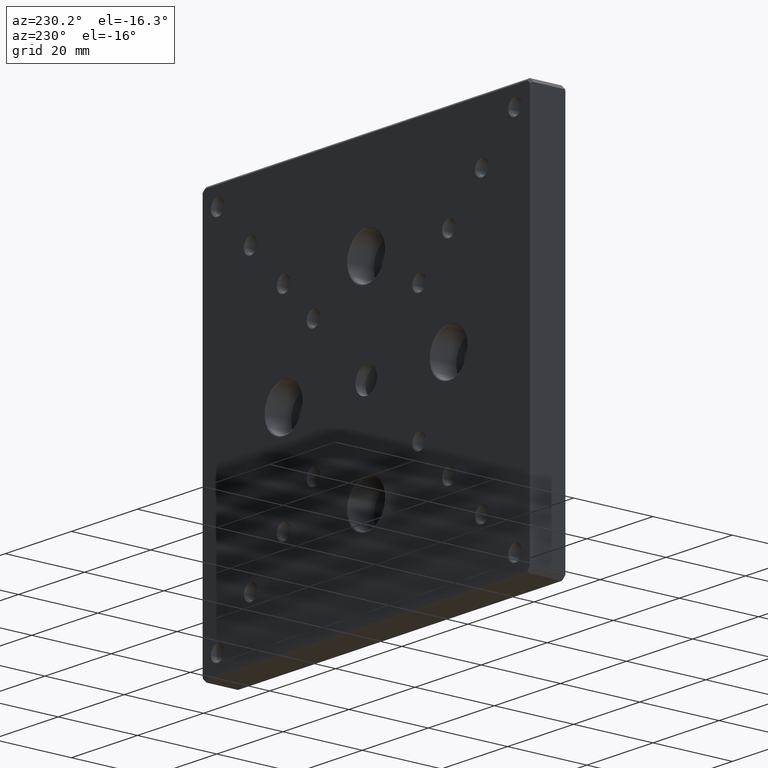
[diagram: clean part render]
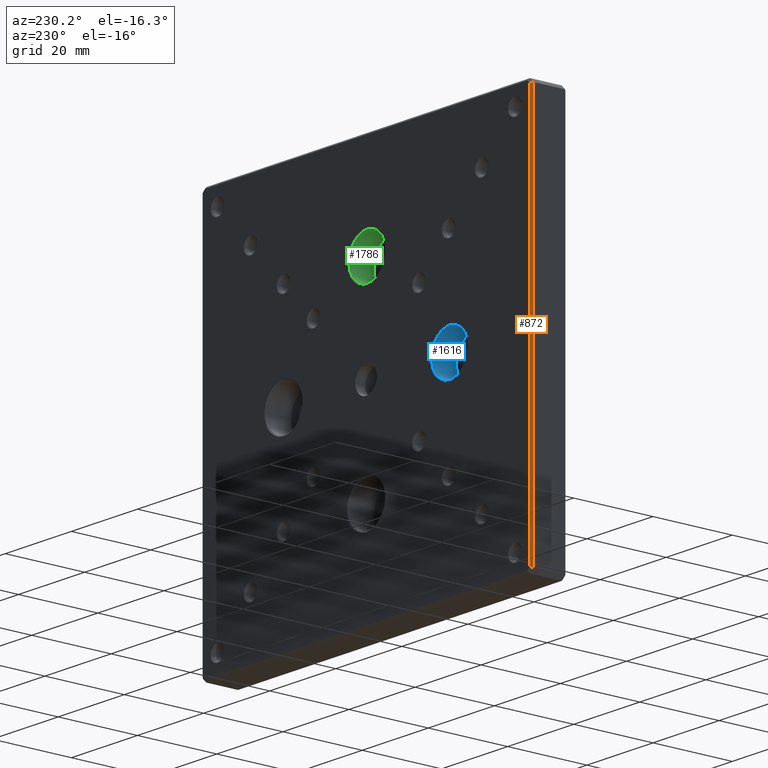
[diagram: same view with three faces highlighted in distinct colors, each labeled with its STEP entity id]
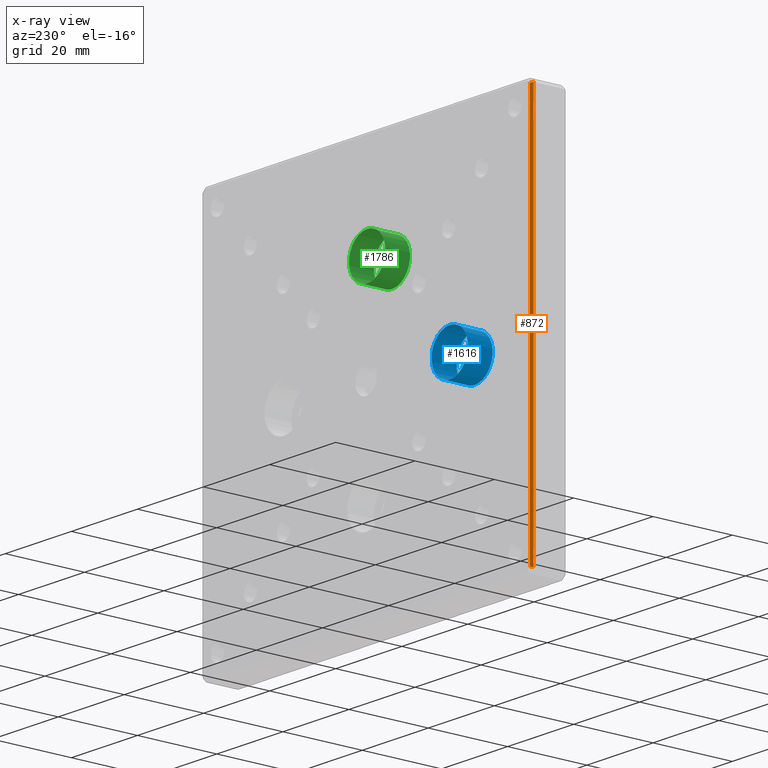
[diagram: x-ray of the same camera — body ghosted, the three highlighted faces saturated]
A machine part, auxiliary view with three faces highlighted in distinct colors.
The next image is the same camera in x-ray (body ghosted, the three faces saturated) — at least one of them is partly hidden behind the body in this view.
Their STEP definitions:

[orange] entity #872 — the highlighted planar face has unit normal (-0.7071, 0.7071, 0).
#84 = VERTEX_POINT ( 'NONE', #1437 ) ;
#117 = LINE ( 'NONE', #1403, #606 ) ;
#205 = ORIENTED_EDGE ( 'NONE', *, *, #1416, .F. ) ;
#228 = LINE ( 'NONE', #870, #927 ) ;
#308 = LINE ( 'NONE', #472, #571 ) ;
#375 = LINE ( 'NONE', #833, #1719 ) ;
#467 = AXIS2_PLACEMENT_3D ( 'NONE', #1141, #630, #638 ) ;
#472 = CARTESIAN_POINT ( 'NONE',  ( -50.00000000000000711, 8.499999999999998224, -49.00000000000002132 ) ) ;
#571 = VECTOR ( 'NONE', #622, 1000.000000000000000 ) ;
#606 = VECTOR ( 'NONE', #2049, 1000.000000000000114 ) ;
#622 = DIRECTION ( 'NONE',  ( -1.387778780781445676E-16, 0.000000000000000000, -1.000000000000000000 ) ) ;
#630 = DIRECTION ( 'NONE',  ( -0.7071067811865475727, 0.7071067811865475727, 9.813077866773594484E-17 ) ) ;
#638 = DIRECTION ( 'NONE',  ( -1.387778780781445676E-16, 0.000000000000000000, -1.000000000000000000 ) ) ;
#736 = EDGE_CURVE ( 'NONE', #1531, #975, #117, .T. ) ;
#812 = CARTESIAN_POINT ( 'NONE',  ( -49.99999999999999289, 8.499999999999998224, 49.00000000000002132 ) ) ;
#833 = CARTESIAN_POINT ( 'NONE',  ( -40.19306936508264982, 18.30693063491734662, 44.93783632576494824 ) ) ;
#863 = EDGE_CURVE ( 'NONE', #2074, #1531, #308, .T. ) ;
#870 = CARTESIAN_POINT ( 'NONE',  ( -49.49999999999999289, 9.000000000000000000, 49.00000000000002132 ) ) ;
#872 = ADVANCED_FACE ( 'NONE', ( #2076 ), #1951, .T. ) ;
#887 = ORIENTED_EDGE ( 'NONE', *, *, #863, .F. ) ;
#927 = VECTOR ( 'NONE', #1707, 1000.000000000000000 ) ;
#950 = EDGE_LOOP ( 'NONE', ( #1911, #205, #2082, #887 ) ) ;
#975 = VERTEX_POINT ( 'NONE', #1507 ) ;
#1020 = DIRECTION ( 'NONE',  ( 0.6785983445458455554, 0.6785983445458455554, -0.2810846377148275566 ) ) ;
#1065 = CARTESIAN_POINT ( 'NONE',  ( -50.00000000000000711, 8.499999999999998224, -49.00000000000002132 ) ) ;
#1141 = CARTESIAN_POINT ( 'NONE',  ( -49.50000000000000000, 9.000000000000000000, 6.869504964868156094E-15 ) ) ;
#1403 = CARTESIAN_POINT ( 'NONE',  ( -40.19306936508291273, 18.30693063491709438, -44.93783632576518983 ) ) ;
#1416 = EDGE_CURVE ( 'NONE', #975, #84, #228, .T. ) ;
#1437 = CARTESIAN_POINT ( 'NONE',  ( -49.49999999999999289, 9.000000000000000000, 48.79289321881346808 ) ) ;
#1507 = CARTESIAN_POINT ( 'NONE',  ( -49.50000000000000711, 9.000000000000000000, -48.79289321881346808 ) ) ;
#1531 = VERTEX_POINT ( 'NONE', #1065 ) ;
#1707 = DIRECTION ( 'NONE',  ( 1.387778780781445676E-16, 0.000000000000000000, 1.000000000000000000 ) ) ;
#1719 = VECTOR ( 'NONE', #1020, 1000.000000000000000 ) ;
#1868 = EDGE_CURVE ( 'NONE', #2074, #84, #375, .T. ) ;
#1911 = ORIENTED_EDGE ( 'NONE', *, *, #1868, .T. ) ;
#1951 = PLANE ( 'NONE',  #467 ) ;
#2049 = DIRECTION ( 'NONE',  ( 0.6785983445458472207, 0.6785983445458472207, 0.2810846377148188968 ) ) ;
#2074 = VERTEX_POINT ( 'NONE', #812 ) ;
#2076 = FACE_OUTER_BOUND ( 'NONE', #950, .T. ) ;
#2082 = ORIENTED_EDGE ( 'NONE', *, *, #736, .F. ) ;

[blue] entity #1616 — the highlighted cylindrical surface (bore or boss wall) has radius 5.5 mm, axis along (-0, 1, -0).
#87 = DIRECTION ( 'NONE',  ( -0.000000000000000000, 1.000000000000000000, -0.000000000000000000 ) ) ;
#91 = DIRECTION ( 'NONE',  ( 0.000000000000000000, 0.000000000000000000, 1.000000000000000000 ) ) ;
#235 = AXIS2_PLACEMENT_3D ( 'NONE', #374, #87, #1345 ) ;
#374 = CARTESIAN_POINT ( 'NONE',  ( -25.00000000000000355, 2.499999999999999556, -3.469446951953614189E-15 ) ) ;
#475 = FACE_OUTER_BOUND ( 'NONE', #1359, .T. ) ;
#541 = VERTEX_POINT ( 'NONE', #1028 ) ;
#601 = EDGE_LOOP ( 'NONE', ( #1542 ) ) ;
#607 = EDGE_CURVE ( 'NONE', #541, #541, #980, .T. ) ;
#620 = AXIS2_PLACEMENT_3D ( 'NONE', #702, #1677, #91 ) ;
#702 = CARTESIAN_POINT ( 'NONE',  ( -25.00000000000000355, 8.749999999999980460, -3.469446951953614189E-15 ) ) ;
#781 = FACE_OUTER_BOUND ( 'NONE', #601, .T. ) ;
#824 = AXIS2_PLACEMENT_3D ( 'NONE', #1302, #1792, #1623 ) ;
#980 = CIRCLE ( 'NONE', #235, 5.500000000000015099 ) ;
#1028 = CARTESIAN_POINT ( 'NONE',  ( -25.00000000000000355, 2.499999999999999556, 5.500000000000011546 ) ) ;
#1040 = CARTESIAN_POINT ( 'NONE',  ( -25.00000000000000355, 8.749999999999980460, 5.500000000000011546 ) ) ;
#1293 = CYLINDRICAL_SURFACE ( 'NONE', #824, 5.500000000000015099 ) ;
#1302 = CARTESIAN_POINT ( 'NONE',  ( -25.00000000000000355, 9.000000000000000000, -3.469446951953614189E-15 ) ) ;
#1330 = EDGE_CURVE ( 'NONE', #1833, #1833, #1562, .T. ) ;
#1345 = DIRECTION ( 'NONE',  ( 0.000000000000000000, 0.000000000000000000, 1.000000000000000000 ) ) ;
#1359 = EDGE_LOOP ( 'NONE', ( #1376 ) ) ;
#1376 = ORIENTED_EDGE ( 'NONE', *, *, #607, .F. ) ;
#1542 = ORIENTED_EDGE ( 'NONE', *, *, #1330, .T. ) ;
#1562 = CIRCLE ( 'NONE', #620, 5.500000000000015099 ) ;
#1616 = ADVANCED_FACE ( 'NONE', ( #781, #475 ), #1293, .F. ) ;
#1623 = DIRECTION ( 'NONE',  ( 0.000000000000000000, 0.000000000000000000, 1.000000000000000000 ) ) ;
#1677 = DIRECTION ( 'NONE',  ( 0.000000000000000000, 1.000000000000000000, 0.000000000000000000 ) ) ;
#1792 = DIRECTION ( 'NONE',  ( -0.000000000000000000, 1.000000000000000000, -0.000000000000000000 ) ) ;
#1833 = VERTEX_POINT ( 'NONE', #1040 ) ;

[green] entity #1786 — the highlighted cylindrical surface (bore or boss wall) has radius 5.5 mm, axis along (-0, 1, -0).
#18 = ORIENTED_EDGE ( 'NONE', *, *, #579, .T. ) ;
#68 = FACE_OUTER_BOUND ( 'NONE', #1338, .T. ) ;
#133 = DIRECTION ( 'NONE',  ( -0.000000000000000000, 1.000000000000000000, -0.000000000000000000 ) ) ;
#237 = CYLINDRICAL_SURFACE ( 'NONE', #1000, 5.500000000000015099 ) ;
#407 = ORIENTED_EDGE ( 'NONE', *, *, #1425, .F. ) ;
#464 = CIRCLE ( 'NONE', #1312, 5.500000000000015099 ) ;
#520 = VERTEX_POINT ( 'NONE', #1673 ) ;
#579 = EDGE_CURVE ( 'NONE', #520, #520, #464, .T. ) ;
#746 = CARTESIAN_POINT ( 'NONE',  ( 0.000000000000000000, 2.499999999999999556, 30.50000000000001421 ) ) ;
#856 = CARTESIAN_POINT ( 'NONE',  ( 0.000000000000000000, 9.000000000000000000, 24.99999999999999645 ) ) ;
#888 = VERTEX_POINT ( 'NONE', #746 ) ;
#1000 = AXIS2_PLACEMENT_3D ( 'NONE', #856, #1042, #1347 ) ;
#1042 = DIRECTION ( 'NONE',  ( -0.000000000000000000, 1.000000000000000000, -0.000000000000000000 ) ) ;
#1251 = CARTESIAN_POINT ( 'NONE',  ( 0.000000000000000000, 2.499999999999999556, 24.99999999999999645 ) ) ;
#1294 = EDGE_LOOP ( 'NONE', ( #18 ) ) ;
#1312 = AXIS2_PLACEMENT_3D ( 'NONE', #1844, #1802, #1500 ) ;
#1338 = EDGE_LOOP ( 'NONE', ( #407 ) ) ;
#1347 = DIRECTION ( 'NONE',  ( 0.000000000000000000, 0.000000000000000000, 1.000000000000000000 ) ) ;
#1425 = EDGE_CURVE ( 'NONE', #888, #888, #1461, .T. ) ;
#1461 = CIRCLE ( 'NONE', #1757, 5.500000000000015099 ) ;
#1500 = DIRECTION ( 'NONE',  ( 0.000000000000000000, 0.000000000000000000, 1.000000000000000000 ) ) ;
#1510 = FACE_OUTER_BOUND ( 'NONE', #1294, .T. ) ;
#1673 = CARTESIAN_POINT ( 'NONE',  ( 0.000000000000000000, 8.750000000000019540, 30.50000000000001421 ) ) ;
#1757 = AXIS2_PLACEMENT_3D ( 'NONE', #1251, #133, #2034 ) ;
#1786 = ADVANCED_FACE ( 'NONE', ( #1510, #68 ), #237, .F. ) ;
#1802 = DIRECTION ( 'NONE',  ( 0.000000000000000000, 1.000000000000000000, 0.000000000000000000 ) ) ;
#1844 = CARTESIAN_POINT ( 'NONE',  ( 0.000000000000000000, 8.750000000000019540, 24.99999999999999645 ) ) ;
#2034 = DIRECTION ( 'NONE',  ( 0.000000000000000000, 0.000000000000000000, 1.000000000000000000 ) ) ;